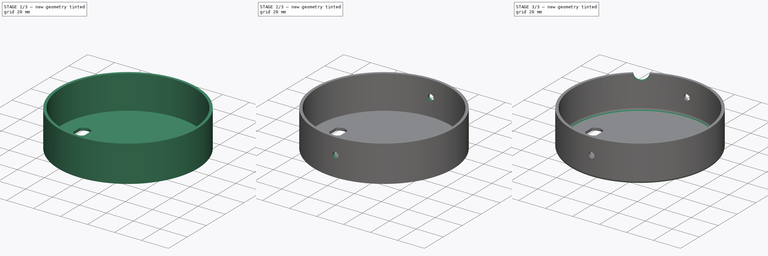
[diagram: build sequence overview — one tinted view per stage of 3, left to right]
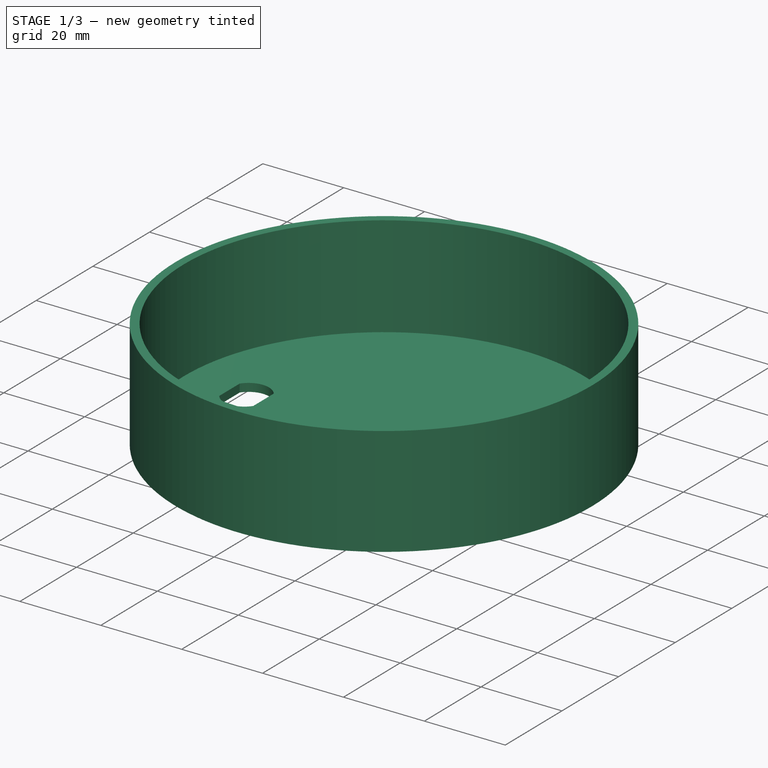
[diagram: stage 1 of 3 — iso view after this stage's code; geometry added in this stage tinted green]
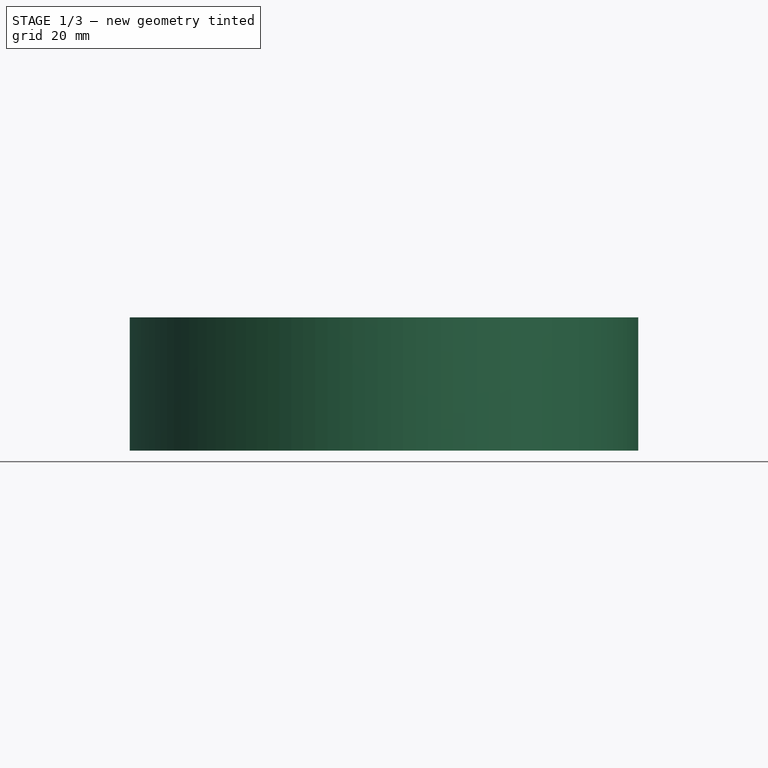
[diagram: stage 1 of 3 — front view after this stage's code; geometry added in this stage tinted green]
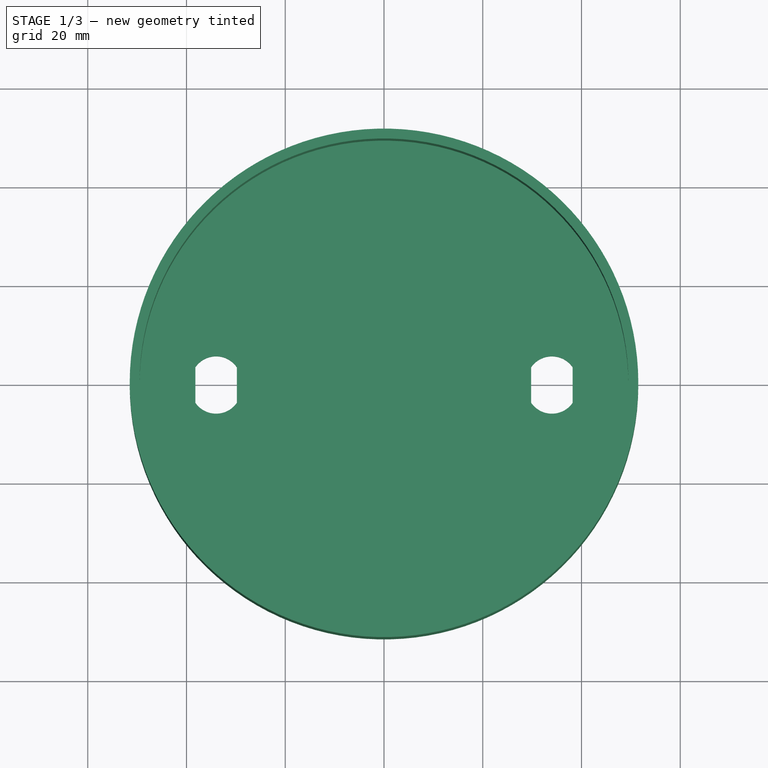
[diagram: stage 1 of 3 — top view after this stage's code; geometry added in this stage tinted green]
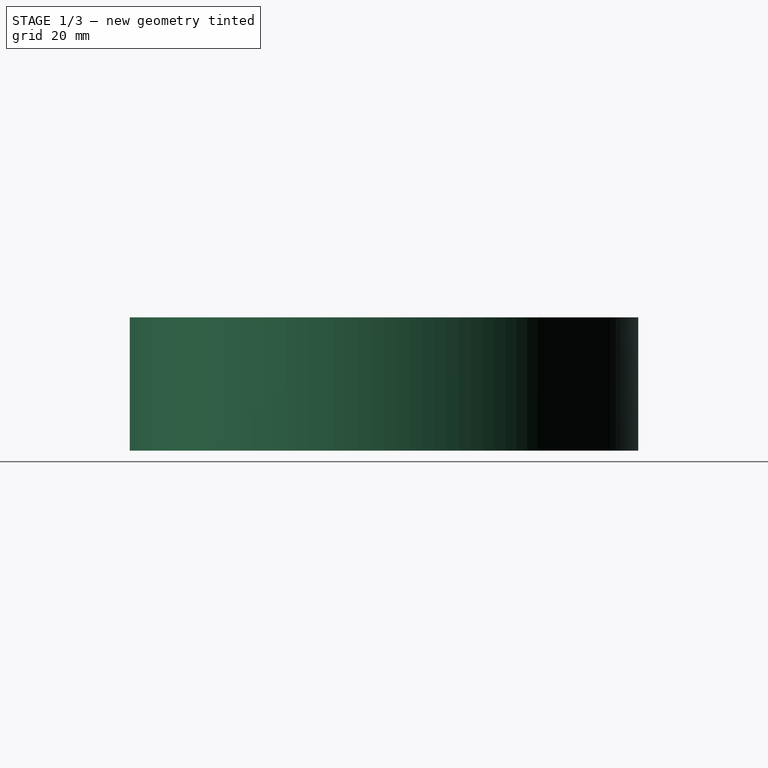
[diagram: stage 1 of 3 — right view after this stage's code; geometry added in this stage tinted green]
FCSTD DOCUMENT  (FreeCAD 0.19R23756 (Git))
Label: KitchenSpotBase
License: All rights reserved
LicenseURL: http://en.wikipedia.org/wiki/All_rights_reserved
objects: Sketcher::SketchObject×4, PartDesign::Pad×2, PartDesign::Pocket×2, Spreadsheet::Sheet×1, PartDesign::Fillet×1, PartDesign::Body×1
note: 15 computed .brp shape members not serialized (recipe doc carries the construction recipe); baked Part::Feature solids carry a one-line shape summary decoded from their .brp

FEATURE [Sketcher::SketchObject] Sketch
  FullyConstrained = true
  MapMode = 5
  Support = -> [XY_Plane]
  sketch-geometry (15):
    g0: Circle CenterX=0 CenterY=0 CenterZ=0 NormalX=0 NormalY=0 NormalZ=1 AngleXU=0 Radius=49.5
    g1: LineSegment StartX=-38.2 StartY=3.6 StartZ=0 EndX=-29.8 EndY=3.6 EndZ=0
    g2: LineSegment StartX=-29.8 StartY=3.6 StartZ=0 EndX=-29.8 EndY=-3.6 EndZ=0
    g3: LineSegment StartX=-29.8 StartY=-3.6 StartZ=0 EndX=-38.2 EndY=-3.6 EndZ=0
    g4: LineSegment StartX=-38.2 StartY=-3.6 StartZ=0 EndX=-38.2 EndY=3.6 EndZ=0
    g5: ArcOfCircle CenterX=-34 CenterY=0.706905 CenterZ=0 NormalX=0 NormalY=0 NormalZ=1 AngleXU=0 Radius=5.1 StartAngle=0.603191 EndAngle=2.5384
    g6: ArcOfCircle CenterX=-34 CenterY=-0.706905 CenterZ=0 NormalX=0 NormalY=0 NormalZ=1 AngleXU=0 Radius=5.1 StartAngle=3.74478 EndAngle=5.67999
    g7: LineSegment StartX=-34 StartY=0.706905 StartZ=0 EndX=-34 EndY=-0.706905 EndZ=0
    g8: LineSegment StartX=38.2 StartY=3.6 StartZ=0 EndX=29.8 EndY=3.6 EndZ=0
    g9: LineSegment StartX=29.8 StartY=3.6 StartZ=0 EndX=29.8 EndY=-3.6 EndZ=0
    g10: LineSegment StartX=29.8 StartY=-3.6 StartZ=0 EndX=38.2 EndY=-3.6 EndZ=0
    g11: LineSegment StartX=38.2 StartY=-3.6 StartZ=0 EndX=38.2 EndY=3.6 EndZ=0
    g12: ArcOfCircle CenterX=34 CenterY=0.706905 CenterZ=0 NormalX=0 NormalY=0 NormalZ=1 AngleXU=0 Radius=5.1 StartAngle=0.603191 EndAngle=2.5384
    g13: ArcOfCircle CenterX=34 CenterY=-0.706905 CenterZ=0 NormalX=0 NormalY=0 NormalZ=1 AngleXU=0 Radius=5.1 StartAngle=3.74478 EndAngle=5.67999
    g14: LineSegment StartX=34 StartY=0.706905 StartZ=0 EndX=34 EndY=-0.706905 EndZ=0
  constraints (40):
    c: Coincident(g0,g-1)
    c: Radius(g0) = 49.5
    c: Coincident(g1,g2)
    c: Coincident(g2,g3)
    c: Coincident(g3,g4)
    c: Coincident(g4,g1)
    c: Horizontal(g1)
    c: Horizontal(g3)
    c: Vertical(g2)
    c: DistanceX(g1,g1) = 8.4
    c: DistanceY(g4,g4) = 7.2
    c: Coincident(g5,g4)
    c: Coincident(g5,g2)
    c: Radius(g5) = 5.1
    c: Coincident(g6,g4)
    c: Coincident(g6,g2)
    c: Equal(g6,g5)
    c: Coincident(g7,g5)
    c: Coincident(g7,g6)
    c: Symmetric(g5,g6,g-1)
    c: Coincident(g8,g9)
    c: Coincident(g9,g10)
    c: Coincident(g10,g11)
    c: Coincident(g11,g8)
    c: Horizontal(g8)
    c: Horizontal(g10)
    c: Vertical(g9)
    c: Coincident(g12,g11)
    c: Coincident(g12,g9)
    c: Coincident(g13,g11)
    c: Coincident(g13,g9)
    c: Equal(g13,g12)
    c: Coincident(g14,g12)
    c: Coincident(g14,g13)
    c: Equal(g13,g6)
    c: Equal(g9,g2)
    c: Equal(g1,g8)
    c: Symmetric(g6,g13,g-2)
    c: Vertical(g11)
    c: DistanceX(g5,g12) = 68
FEATURE [PartDesign::Pad] Pad
  Direction = (1,1,1)
  Length = 2
  Length2 = 100
  Profile = -> Sketch
  Type = 0
  expr: Length = <<Spreadsheet>>.PlateTickness
FEATURE [Sketcher::SketchObject] Sketch001
  ExternalGeometry = -> [Sketch]
  FullyConstrained = true
  MapMode = 5
  Support = -> [XY_Plane]
  expr: Constraints[7] = <<Spreadsheet>>.WallThickess
  sketch-geometry (3):
    g0: Circle CenterX=0 CenterY=0 CenterZ=0 NormalX=0 NormalY=0 NormalZ=1 AngleXU=0 Radius=51.5
    g1: Circle CenterX=0 CenterY=0 CenterZ=0 NormalX=0 NormalY=0 NormalZ=1 AngleXU=0 Radius=49.5
    g2: LineSegment StartX=49.5 StartY=0 StartZ=0 EndX=51.5 EndY=0 EndZ=0
  constraints (8):
    c: Coincident(g0,g-1)
    c: Coincident(g1,g0)
    c: Equal(g1,g-3)
    c: PointOnObject(g2,g1)
    c: Horizontal(g2)
    c: PointOnObject(g0,g2)
    c: PointOnObject(g2,g0)
    c: DistanceX(g2,g2) = 2
FEATURE [PartDesign::Pad] Pad001
  BaseFeature = -> Pad
  Direction = (1,1,1)
  Length = 27
  Length2 = 100
  Profile = -> Sketch001
  Refine = true
  Type = 0
  expr: Length = 25mm + <<Pad>>.Length
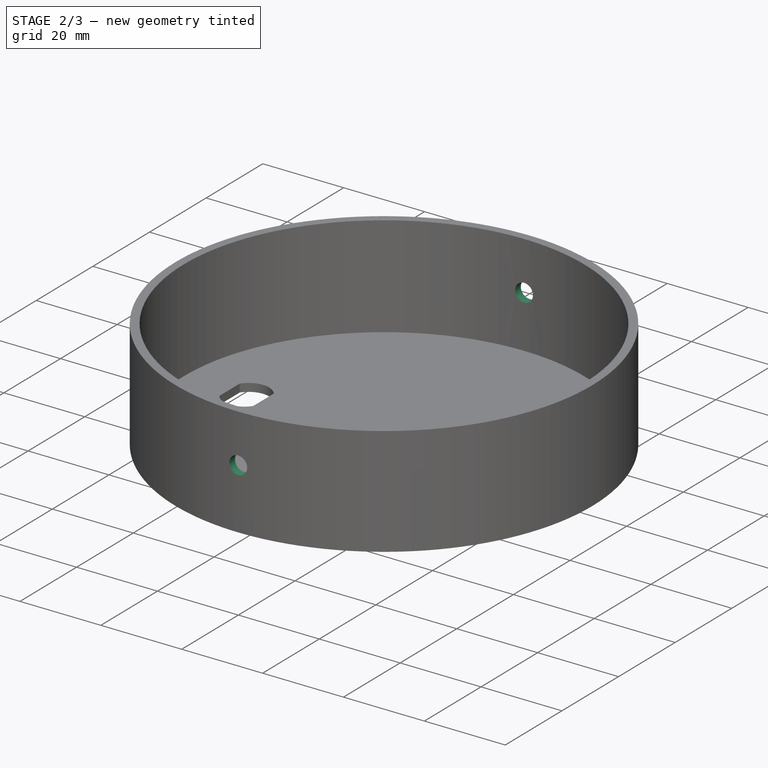
[diagram: stage 2 of 3 — iso view after this stage's code; geometry added in this stage tinted green]
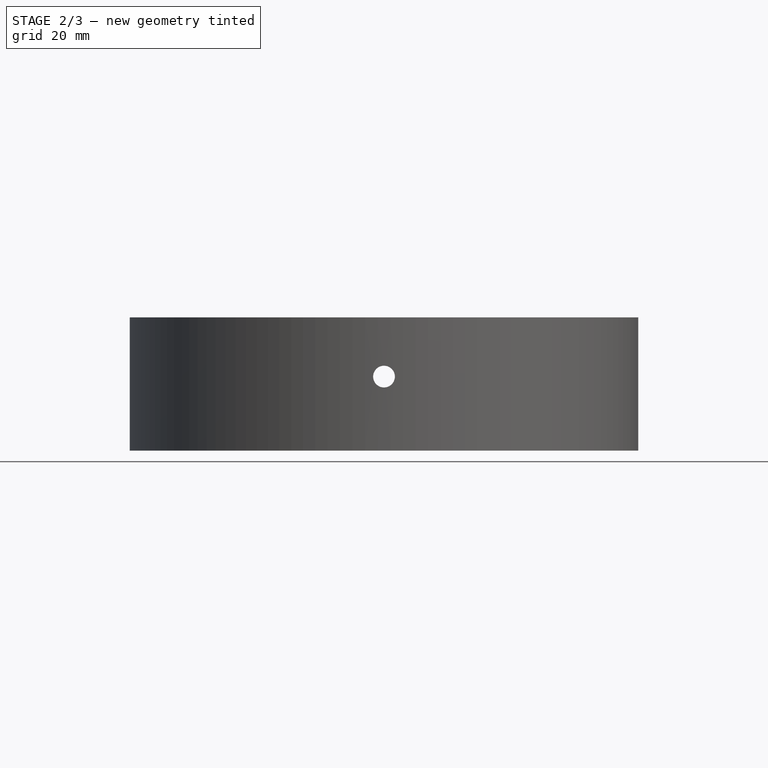
[diagram: stage 2 of 3 — front view after this stage's code; geometry added in this stage tinted green]
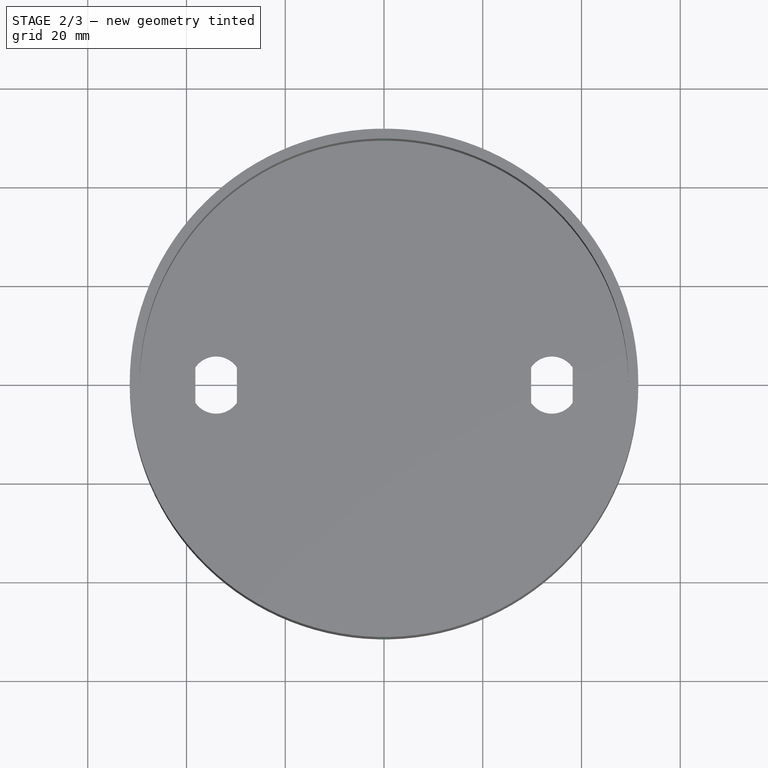
[diagram: stage 2 of 3 — top view after this stage's code; geometry added in this stage tinted green]
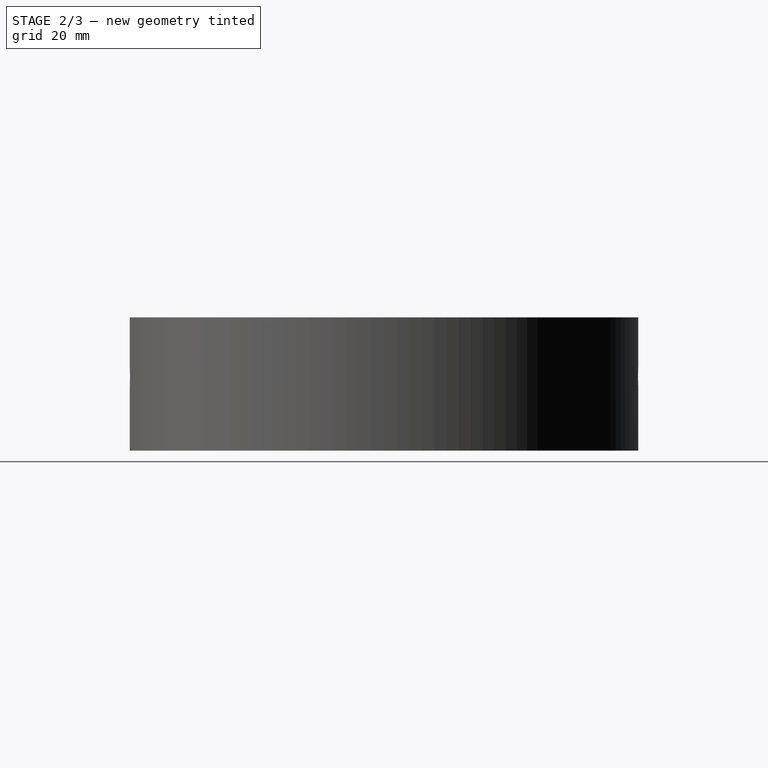
[diagram: stage 2 of 3 — right view after this stage's code; geometry added in this stage tinted green]
FEATURE [Sketcher::SketchObject] Sketch002
  AttachmentOffset = pos=(0,15,0) rot=(0,0,1;0rad)
  FullyConstrained = true
  MapMode = 5
  Placement = pos=(0,-3.3e-15,15) rot=(1,0,0;1.5708rad)
  Support = -> [XZ_Plane]
  expr: .AttachmentOffset.Base.y = <<Sketch001>>.AttachmentOffset.Base.z + <<Pad001>>.Length - 12mm
  sketch-geometry (1):
    g0: Circle CenterX=0 CenterY=0 CenterZ=0 NormalX=0 NormalY=0 NormalZ=1 AngleXU=0 Radius=2.2
  constraints (2):
    c: Coincident(g0,g-1)
    c: Radius(g0) = 2.2
FEATURE [PartDesign::Pocket] Pocket
  BaseFeature = -> Pad001
  Length = 5
  Length2 = 100
  Midplane = true
  Profile = -> Sketch002
  Type = 1
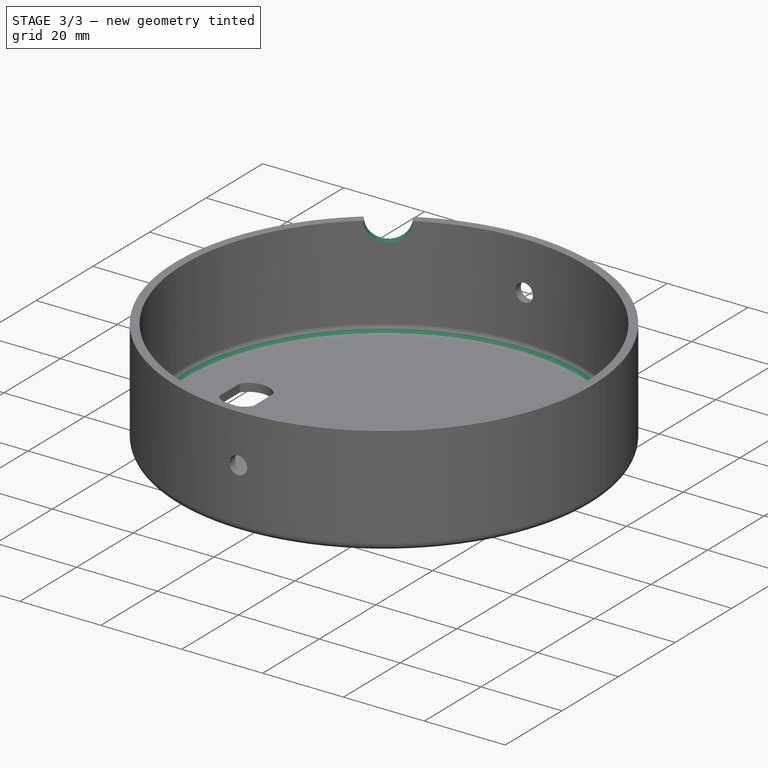
[diagram: stage 3 of 3 — iso view after this stage's code; geometry added in this stage tinted green]
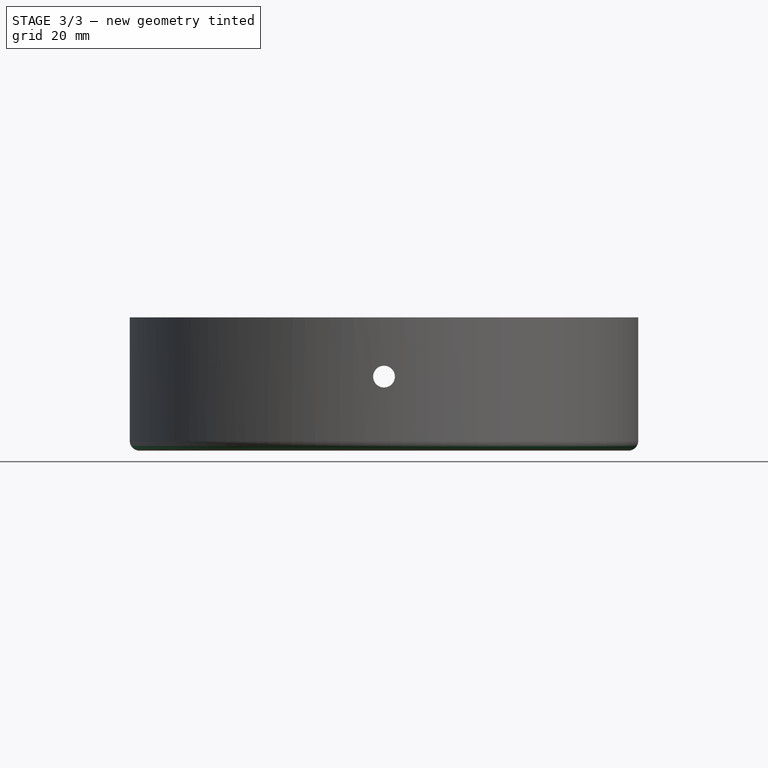
[diagram: stage 3 of 3 — front view after this stage's code; geometry added in this stage tinted green]
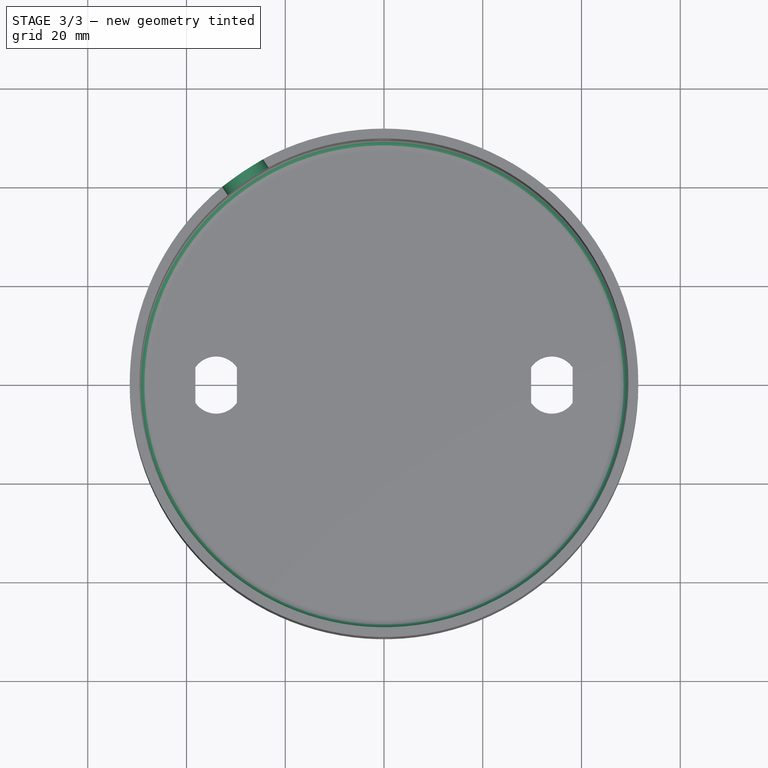
[diagram: stage 3 of 3 — top view after this stage's code; geometry added in this stage tinted green]
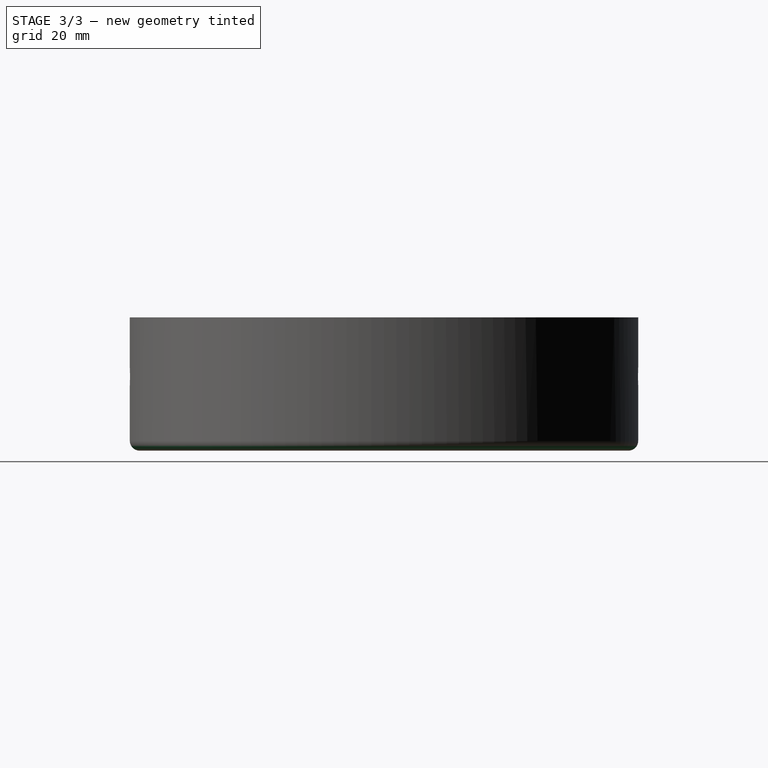
[diagram: stage 3 of 3 — right view after this stage's code; geometry added in this stage tinted green]
FEATURE [Spreadsheet::Sheet] Spreadsheet
  cells = B2=PlateTickness; C2(PlateTickness)=2; B3=WallThickess; C3(WallThickess)=2
FEATURE [Sketcher::SketchObject] Sketch005
  AttachmentOffset = pos=(0,27,0) rot=(0,1,0;0.593412rad)
  FullyConstrained = true
  MapMode = 5
  Placement = pos=(0,-6e-15,27) rot=(0.917878,0.280624,0.280624;1.65638rad)
  Support = -> [XZ_Plane]
  expr: .AttachmentOffset.Base.y = <<Sketch001>>.AttachmentOffset.Base.z + <<Pad001>>.Length
  sketch-geometry (1):
    g0: Circle CenterX=0 CenterY=0 CenterZ=0 NormalX=0 NormalY=0 NormalZ=1 AngleXU=0 Radius=5
  constraints (2):
    c: Coincident(g0,g-1)
    c: Radius(g0) = 5
FEATURE [PartDesign::Pocket] Pocket003
  BaseFeature = -> Pocket
  Length = 5
  Length2 = 100
  Profile = -> Sketch005
  Type = 1
FEATURE [PartDesign::Fillet] Fillet
  Base = -> Pocket003 [Edge5,Edge25]
  BaseFeature = -> Pocket003
  Radius = 2
  SupportTransform = false
FEATURE [PartDesign::Body] Body
  Group = -> [Sketch,Pad,Sketch001,Pad001,Sketch002,Pocket,Sketch005,Pocket003,Fillet]
  Origin = -> Origin
  Tip = -> Fillet
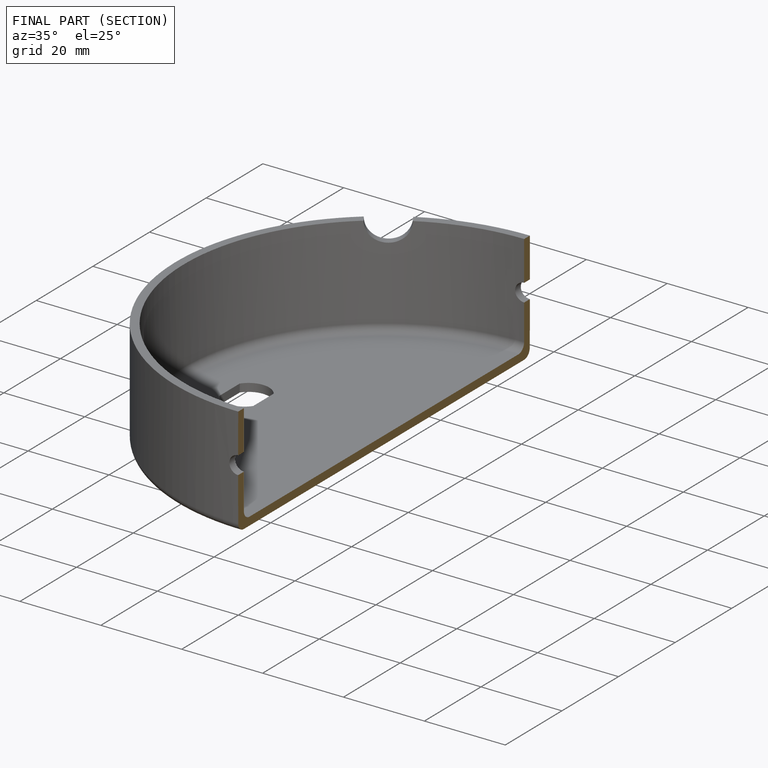
[diagram: finished part — half-section view (interior)]
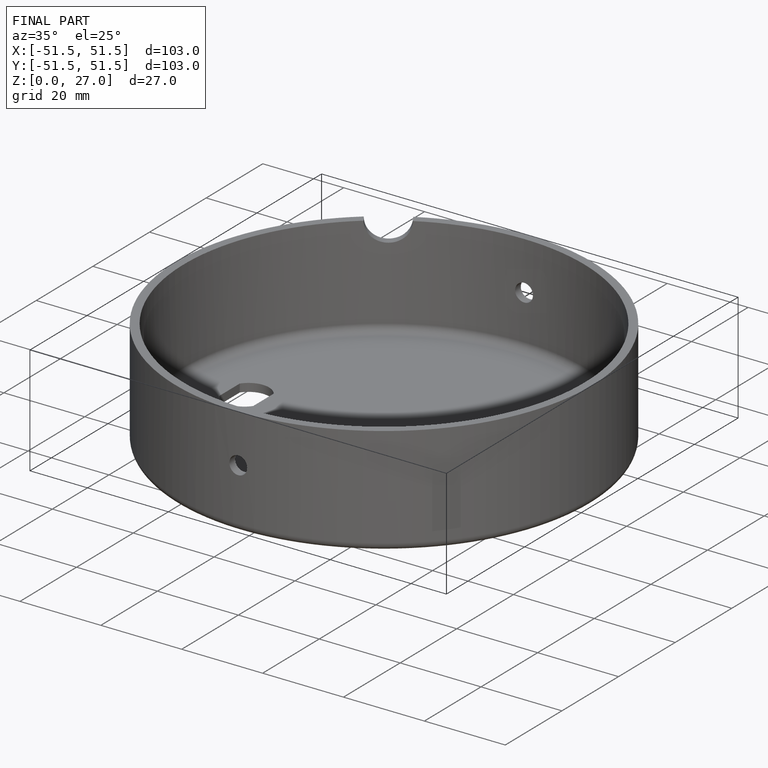
[diagram: finished part — iso view with bounding-box wireframe]
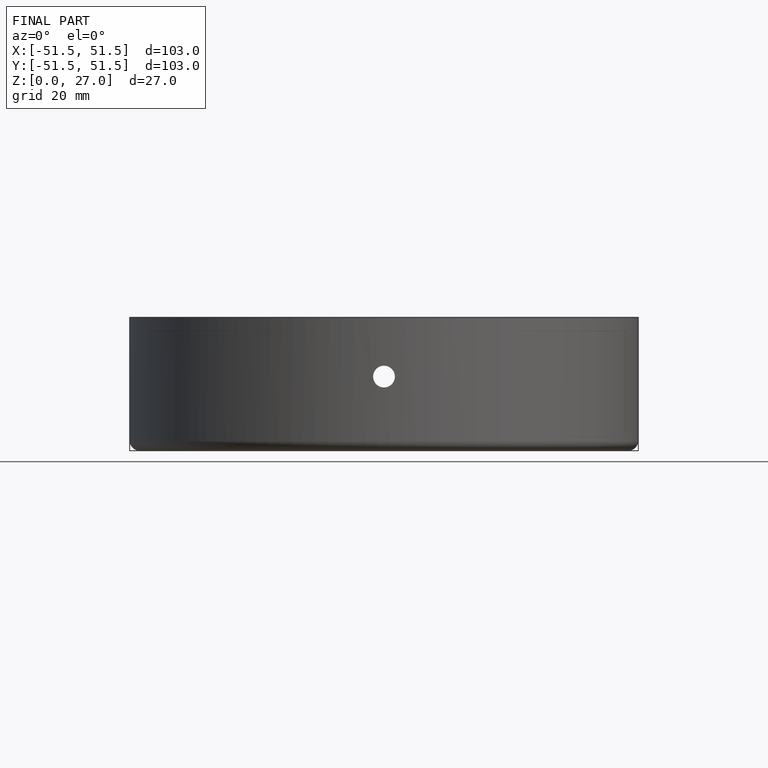
[diagram: finished part — front view with bounding-box wireframe]
